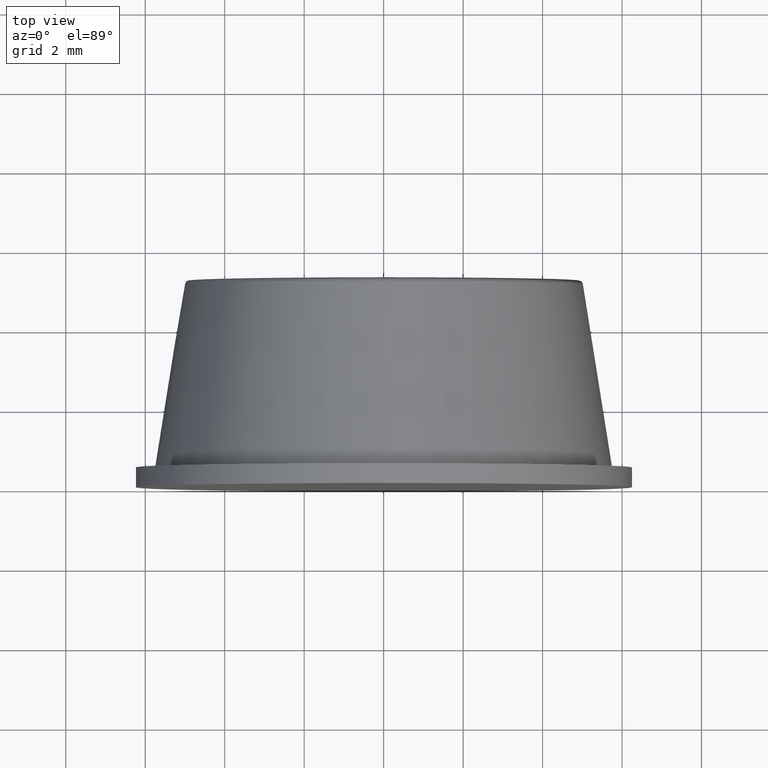
[diagram: clean part render]
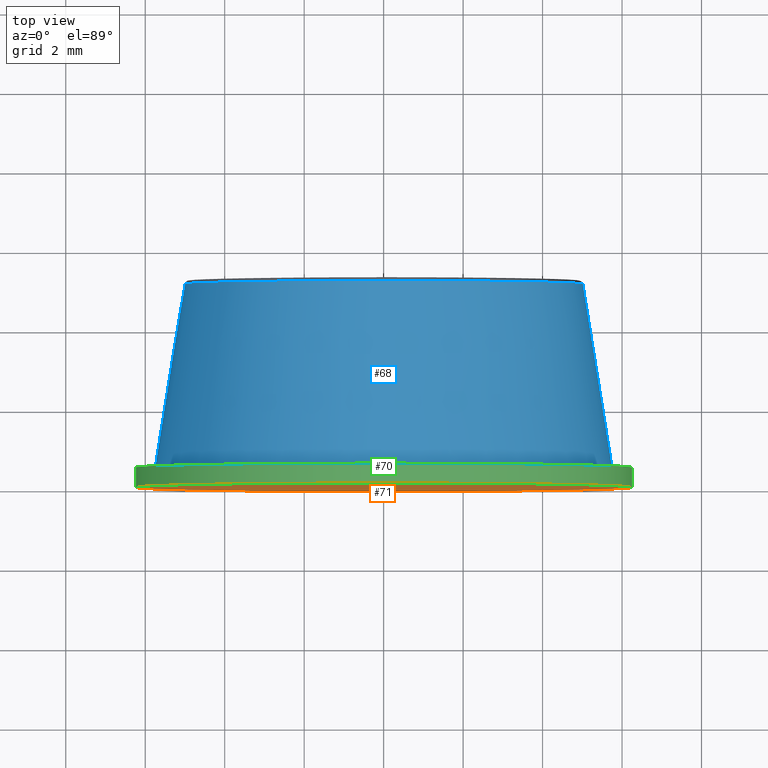
[diagram: same view with three faces highlighted in distinct colors, each labeled with its STEP entity id]
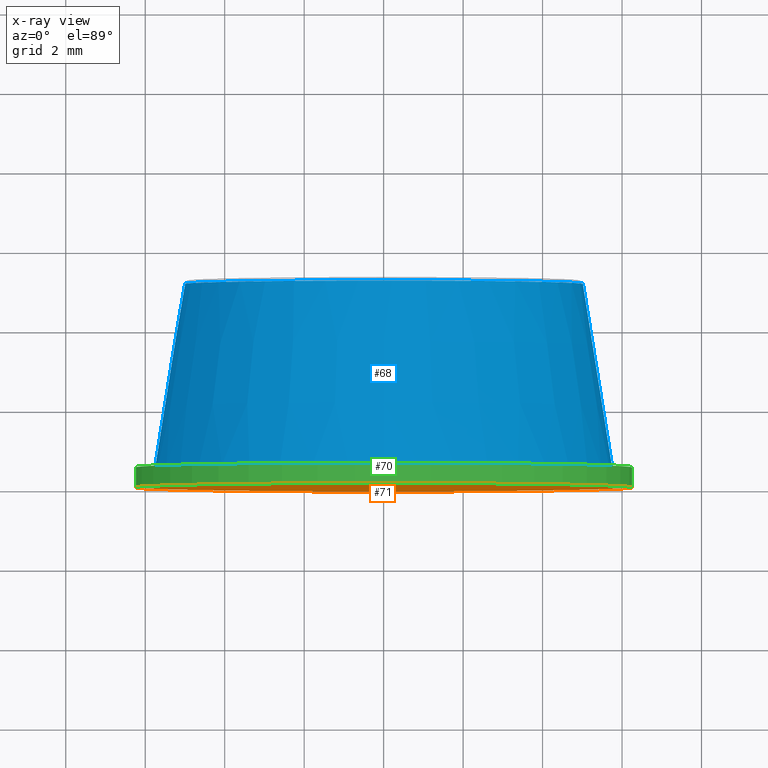
[diagram: x-ray of the same camera — body ghosted, the three highlighted faces saturated]
A machine part, top view with three faces highlighted in distinct colors.
The next image is the same camera in x-ray (body ghosted, the three faces saturated) — at least one of them is partly hidden behind the body in this view.
Their STEP definitions:

[orange] entity #71 — the highlighted planar face has unit normal (0, -1, 0).
#19=PLANE('',#84);
#29=FACE_OUTER_BOUND('',#39,.T.);
#39=EDGE_LOOP('',(#64));
#44=CIRCLE('',#83,6.25);
#49=VERTEX_POINT('',#123);
#54=EDGE_CURVE('',#49,#49,#44,.T.);
#64=ORIENTED_EDGE('',*,*,#54,.T.);
#71=ADVANCED_FACE('',(#29),#19,.T.);
#83=AXIS2_PLACEMENT_3D('',#124,#105,#106);
#84=AXIS2_PLACEMENT_3D('',#125,#107,#108);
#105=DIRECTION('center_axis',(6.12323399573676E-17,-1.,0.));
#106=DIRECTION('ref_axis',(1.,6.12323399573676E-17,0.));
#107=DIRECTION('center_axis',(6.12323399573676E-17,-1.,0.));
#108=DIRECTION('ref_axis',(0.,0.,-1.));
#123=CARTESIAN_POINT('',(6.25,0.,0.));
#124=CARTESIAN_POINT('Origin',(2.34337466040915E-32,-3.82702124733548E-16,
0.));
#125=CARTESIAN_POINT('Origin',(0.,0.,0.));

[blue] entity #68 — the highlighted conical surface has half-angle 9.067 deg.
#16=CONICAL_SURFACE('',#78,5.375,9.06650273981617);
#21=FACE_BOUND('',#34,.T.);
#26=FACE_OUTER_BOUND('',#33,.T.);
#33=EDGE_LOOP('',(#58));
#34=EDGE_LOOP('',(#59));
#41=CIRCLE('',#76,5.01344286019461);
#42=CIRCLE('',#79,5.75);
#46=VERTEX_POINT('',#113);
#47=VERTEX_POINT('',#117);
#51=EDGE_CURVE('',#46,#46,#41,.T.);
#52=EDGE_CURVE('',#47,#47,#42,.T.);
#58=ORIENTED_EDGE('',*,*,#52,.F.);
#59=ORIENTED_EDGE('',*,*,#51,.F.);
#68=ADVANCED_FACE('',(#26,#21),#16,.T.);
#76=AXIS2_PLACEMENT_3D('',#114,#91,#92);
#78=AXIS2_PLACEMENT_3D('',#116,#95,#96);
#79=AXIS2_PLACEMENT_3D('',#118,#97,#98);
#91=DIRECTION('center_axis',(0.,1.,0.));
#92=DIRECTION('ref_axis',(-1.,0.,2.45858025867674E-32));
#95=DIRECTION('center_axis',(6.12323399573676E-17,-1.,0.));
#96=DIRECTION('ref_axis',(1.,0.,0.));
#97=DIRECTION('center_axis',(6.12323399573676E-17,-1.,0.));
#98=DIRECTION('ref_axis',(1.,6.12323399573676E-17,0.));
#113=CARTESIAN_POINT('',(5.01344286019461,5.11575807611378,-1.2279393502891E-15));
#114=CARTESIAN_POINT('Origin',(0.,5.11575807611378,-6.13969675144548E-16));
#116=CARTESIAN_POINT('Origin',(-1.74512168878498E-16,2.85,0.));
#117=CARTESIAN_POINT('',(5.75,0.5,0.));
#118=CARTESIAN_POINT('Origin',(-3.06161699786838E-17,0.499999999999999,
0.));

[green] entity #70 — the highlighted cylindrical surface (bore or boss wall) has radius 6.25 mm, axis along (0, -1, 0).
#15=CYLINDRICAL_SURFACE('',#82,6.25);
#23=FACE_BOUND('',#38,.T.);
#28=FACE_OUTER_BOUND('',#37,.T.);
#37=EDGE_LOOP('',(#62));
#38=EDGE_LOOP('',(#63));
#43=CIRCLE('',#81,6.25);
#44=CIRCLE('',#83,6.25);
#48=VERTEX_POINT('',#120);
#49=VERTEX_POINT('',#123);
#53=EDGE_CURVE('',#48,#48,#43,.T.);
#54=EDGE_CURVE('',#49,#49,#44,.T.);
#62=ORIENTED_EDGE('',*,*,#53,.T.);
#63=ORIENTED_EDGE('',*,*,#54,.F.);
#70=ADVANCED_FACE('',(#28,#23),#15,.T.);
#81=AXIS2_PLACEMENT_3D('',#121,#101,#102);
#82=AXIS2_PLACEMENT_3D('',#122,#103,#104);
#83=AXIS2_PLACEMENT_3D('',#124,#105,#106);
#101=DIRECTION('center_axis',(6.12323399573676E-17,-1.,0.));
#102=DIRECTION('ref_axis',(1.,6.12323399573676E-17,0.));
#103=DIRECTION('center_axis',(6.12323399573676E-17,-1.,0.));
#104=DIRECTION('ref_axis',(1.,0.,0.));
#105=DIRECTION('center_axis',(6.12323399573676E-17,-1.,0.));
#106=DIRECTION('ref_axis',(1.,6.12323399573676E-17,0.));
#120=CARTESIAN_POINT('',(6.25,0.5,0.));
#121=CARTESIAN_POINT('Origin',(-3.06161699786838E-17,0.5,0.));
#122=CARTESIAN_POINT('Origin',(-1.53080849893419E-17,0.25,0.));
#123=CARTESIAN_POINT('',(6.25,0.,0.));
#124=CARTESIAN_POINT('Origin',(2.34337466040915E-32,-3.82702124733548E-16,
0.));